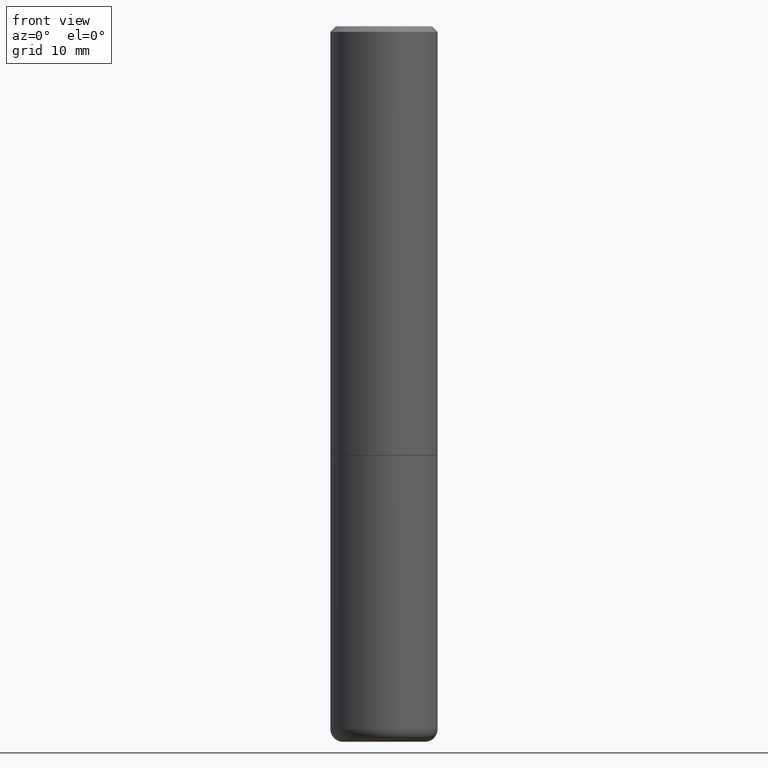
[diagram: clean part render]
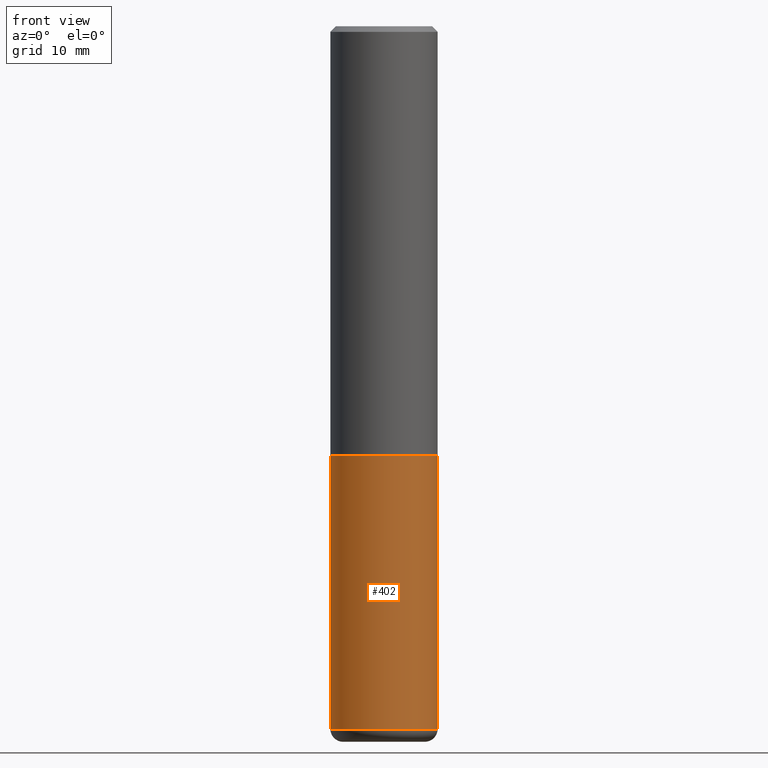
[diagram: same view with one face highlighted and labeled with its STEP entity id]
A machine part, front view. The second image highlights one B-rep face of the part: STEP entity #402.
In plain terms, the highlighted cylindrical surface (partial cylindrical patch) has radius 4.7625 mm, axis along (-0, 0, 1).
Its self-contained STEP definition (entity closure, byte-faithful):
#5 = CARTESIAN_POINT ( 'NONE',  ( -0.1875000000000000278, -5.572244379473308339E-15, -1.500000000000000222 ) ) ;
#12 = CARTESIAN_POINT ( 'NONE',  ( -0.1874999999999998890, 1.332267629550187060E-15, -9.223003294227942385E-30 ) ) ;
#19 = AXIS2_PLACEMENT_3D ( 'NONE', #331, #108, #333 ) ;
#22 = CARTESIAN_POINT ( 'NONE',  ( -0.1874999999999997502, -5.572244379473309128E-15, -2.455061670936044660 ) ) ;
#23 = LINE ( 'NONE', #12, #230 ) ;
#35 = CYLINDRICAL_SURFACE ( 'NONE', #191, 0.1874999999999998890 ) ;
#43 = VERTEX_POINT ( 'NONE', #5 ) ;
#44 = ORIENTED_EDGE ( 'NONE', *, *, #436, .F. ) ;
#72 = VERTEX_POINT ( 'NONE', #328 ) ;
#84 = ORIENTED_EDGE ( 'NONE', *, *, #239, .T. ) ;
#91 = DIRECTION ( 'NONE',  ( -2.445468806185136597E-29, 3.491481338843145583E-15, 1.000000000000000000 ) ) ;
#100 = EDGE_CURVE ( 'NONE', #243, #43, #23, .T. ) ;
#108 = DIRECTION ( 'NONE',  ( -2.445468806185136597E-29, 3.491481338843145583E-15, 1.000000000000000000 ) ) ;
#139 = CARTESIAN_POINT ( 'NONE',  ( 6.003776733534855624E-29, -8.571802009782271832E-15, -2.455061670936044660 ) ) ;
#165 = EDGE_CURVE ( 'NONE', #243, #72, #405, .T. ) ;
#180 = VERTEX_POINT ( 'NONE', #361 ) ;
#181 = CARTESIAN_POINT ( 'NONE',  ( 0.000000000000000000, 0.000000000000000000, 0.000000000000000000 ) ) ;
#191 = AXIS2_PLACEMENT_3D ( 'NONE', #181, #91, #314 ) ;
#212 = ORIENTED_EDGE ( 'NONE', *, *, #100, .F. ) ;
#230 = VECTOR ( 'NONE', #282, 39.37007874015748143 ) ;
#239 = EDGE_CURVE ( 'NONE', #72, #180, #297, .T. ) ;
#243 = VERTEX_POINT ( 'NONE', #22 ) ;
#276 = EDGE_LOOP ( 'NONE', ( #212, #370, #84, #44 ) ) ;
#282 = DIRECTION ( 'NONE',  ( -2.445468806185136877E-29, 3.491481338843145188E-15, 1.000000000000000000 ) ) ;
#297 = LINE ( 'NONE', #401, #395 ) ;
#306 = CIRCLE ( 'NONE', #19, 0.1875000000000000278 ) ;
#314 = DIRECTION ( 'NONE',  ( 1.000000000000000000, -6.982962677686265922E-15, 4.876176775795935793E-29 ) ) ;
#328 = CARTESIAN_POINT ( 'NONE',  ( 0.1874999999999997502, -9.881107511848445263E-15, -2.455061670936044660 ) ) ;
#330 = AXIS2_PLACEMENT_3D ( 'NONE', #139, #428, #397 ) ;
#331 = CARTESIAN_POINT ( 'NONE',  ( 3.668203209277704895E-29, -5.237222008264718177E-15, -1.500000000000000222 ) ) ;
#332 = DIRECTION ( 'NONE',  ( -2.445468806185136877E-29, 3.491481338843145188E-15, 1.000000000000000000 ) ) ;
#333 = DIRECTION ( 'NONE',  ( 1.000000000000000000, -6.982962677686266711E-15, 0.000000000000000000 ) ) ;
#351 = FACE_OUTER_BOUND ( 'NONE', #276, .T. ) ;
#361 = CARTESIAN_POINT ( 'NONE',  ( 0.1875000000000000278, -6.546527510330893974E-15, -1.500000000000000222 ) ) ;
#370 = ORIENTED_EDGE ( 'NONE', *, *, #165, .T. ) ;
#395 = VECTOR ( 'NONE', #332, 39.37007874015748143 ) ;
#397 = DIRECTION ( 'NONE',  ( 1.000000000000000000, -6.982962677686266711E-15, 0.000000000000000000 ) ) ;
#401 = CARTESIAN_POINT ( 'NONE',  ( 0.1874999999999998890, -1.309305502066174022E-15, 9.142831454617374006E-30 ) ) ;
#402 = ADVANCED_FACE ( 'NONE', ( #351 ), #35, .T. ) ;
#405 = CIRCLE ( 'NONE', #330, 0.1874999999999997502 ) ;
#428 = DIRECTION ( 'NONE',  ( -2.445468806185136597E-29, 3.491481338843145583E-15, 1.000000000000000000 ) ) ;
#436 = EDGE_CURVE ( 'NONE', #43, #180, #306, .T. ) ;